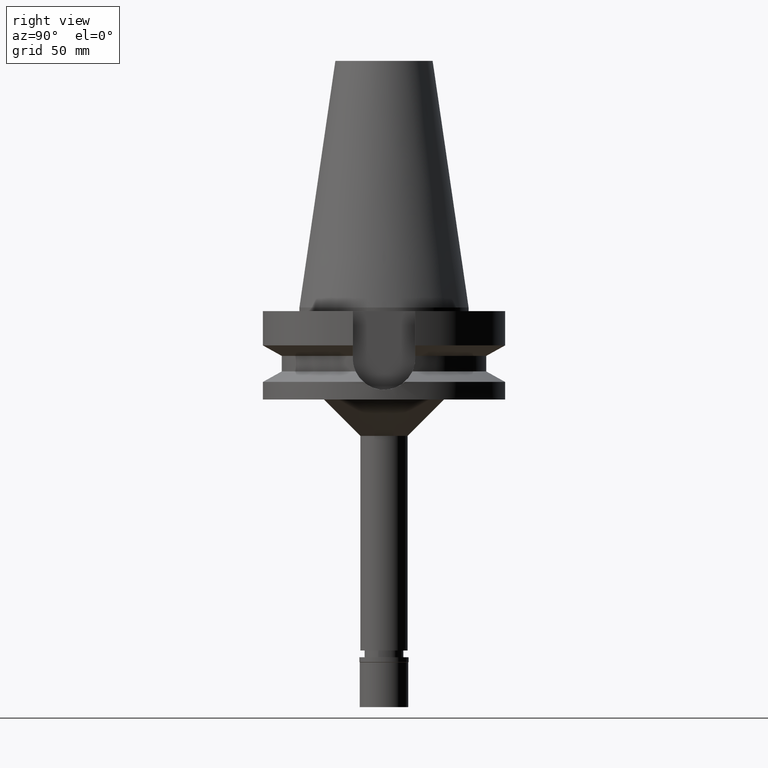
[diagram: clean part render]
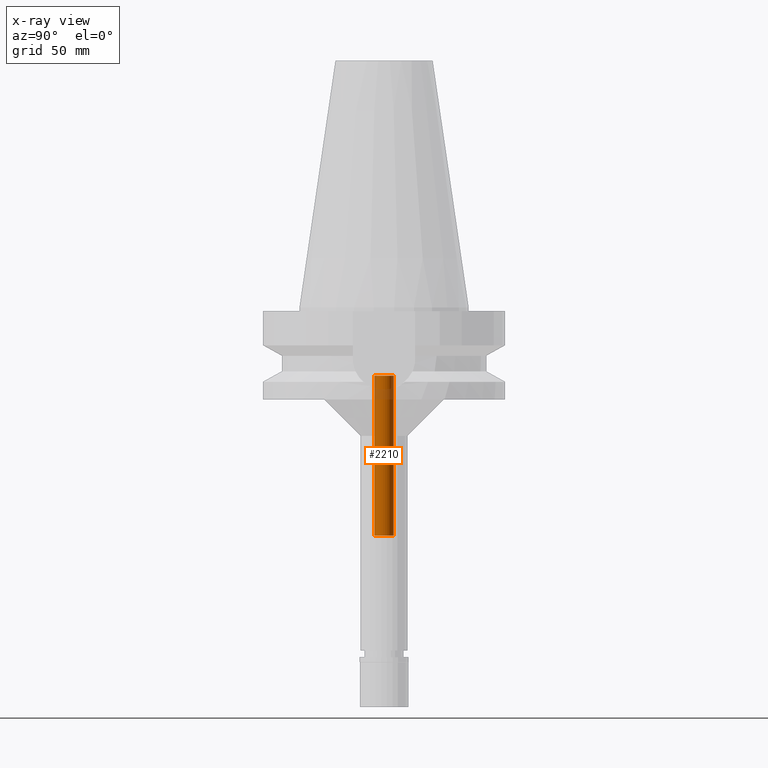
[diagram: x-ray — body ghosted, one internal face saturated and labeled with its STEP entity id]
A machine part, right view, then the same camera in x-ray: the body is ghosted and one INTERNAL B-rep face — a face not visible from any outside direction — is saturated and labeled: STEP entity #2210.
In plain terms, the highlighted cylindrical surface (edge-blend (fillet) strip) has radius 4 mm, axis along (0, 0, -1).
Its self-contained STEP definition (entity closure, byte-faithful):
#221 = CARTESIAN_POINT ( 'NONE',  ( 0.0000000000000000000, 2.629806536488999751E-14, -94.20000000000000284 ) ) ;
#249 = DIRECTION ( 'NONE',  ( 0.0000000000000000000, 0.0000000000000000000, -1.000000000000000000 ) ) ;
#299 = EDGE_CURVE ( 'NONE', #1984, #1639, #2725, .T. ) ;
#336 = EDGE_LOOP ( 'NONE', ( #1725, #1003, #2235, #1232 ) ) ;
#481 = DIRECTION ( 'NONE',  ( 0.0000000000000000000, 0.0000000000000000000, -1.000000000000000000 ) ) ;
#513 = CARTESIAN_POINT ( 'NONE',  ( 0.0000000000000000000, 4.000000000000000000, -94.20000000000000284 ) ) ;
#590 = DIRECTION ( 'NONE',  ( 0.0000000000000000000, -1.000000000000000000, 0.0000000000000000000 ) ) ;
#765 = DIRECTION ( 'NONE',  ( 0.0000000000000000000, 0.0000000000000000000, 1.000000000000000000 ) ) ;
#886 = EDGE_CURVE ( 'NONE', #1475, #1639, #1501, .T. ) ;
#994 = AXIS2_PLACEMENT_3D ( 'NONE', #1391, #2285, #590 ) ;
#1001 = VECTOR ( 'NONE', #765, 1000.000000000000000 ) ;
#1003 = ORIENTED_EDGE ( 'NONE', *, *, #1314, .T. ) ;
#1232 = ORIENTED_EDGE ( 'NONE', *, *, #299, .F. ) ;
#1314 = EDGE_CURVE ( 'NONE', #2048, #1475, #2083, .T. ) ;
#1391 = CARTESIAN_POINT ( 'NONE',  ( 0.0000000000000000000, 2.629806536488999751E-14, -28.19999999999999929 ) ) ;
#1475 = VERTEX_POINT ( 'NONE', #2270 ) ;
#1501 = CIRCLE ( 'NONE', #994, 4.000000000000000000 ) ;
#1586 = CARTESIAN_POINT ( 'NONE',  ( 0.0000000000000000000, -4.000000000000000000, -94.20000000000000284 ) ) ;
#1639 = VERTEX_POINT ( 'NONE', #2119 ) ;
#1725 = ORIENTED_EDGE ( 'NONE', *, *, #3056, .T. ) ;
#1824 = DIRECTION ( 'NONE',  ( 0.0000000000000000000, 0.0000000000000000000, 1.000000000000000000 ) ) ;
#1954 = CIRCLE ( 'NONE', #2675, 4.000000000000000000 ) ;
#1984 = VERTEX_POINT ( 'NONE', #2071 ) ;
#2048 = VERTEX_POINT ( 'NONE', #1586 ) ;
#2071 = CARTESIAN_POINT ( 'NONE',  ( 0.0000000000000000000, 4.000000000000000000, -94.20000000000000284 ) ) ;
#2083 = LINE ( 'NONE', #2561, #3087 ) ;
#2119 = CARTESIAN_POINT ( 'NONE',  ( 0.0000000000000000000, 4.000000000000000000, -28.19999999999999929 ) ) ;
#2210 = ADVANCED_FACE ( 'NONE', ( #2916 ), #2682, .F. ) ;
#2235 = ORIENTED_EDGE ( 'NONE', *, *, #886, .T. ) ;
#2270 = CARTESIAN_POINT ( 'NONE',  ( 0.0000000000000000000, -4.000000000000000000, -28.19999999999999929 ) ) ;
#2285 = DIRECTION ( 'NONE',  ( 0.0000000000000000000, 0.0000000000000000000, 1.000000000000000000 ) ) ;
#2428 = DIRECTION ( 'NONE',  ( 0.0000000000000000000, 1.000000000000000000, 0.0000000000000000000 ) ) ;
#2561 = CARTESIAN_POINT ( 'NONE',  ( 0.0000000000000000000, -4.000000000000000000, -94.20000000000000284 ) ) ;
#2675 = AXIS2_PLACEMENT_3D ( 'NONE', #221, #481, #2428 ) ;
#2682 = CYLINDRICAL_SURFACE ( 'NONE', #2782, 4.000000000000000000 ) ;
#2725 = LINE ( 'NONE', #513, #1001 ) ;
#2782 = AXIS2_PLACEMENT_3D ( 'NONE', #2932, #249, #2862 ) ;
#2862 = DIRECTION ( 'NONE',  ( 0.0000000000000000000, -1.000000000000000000, 0.0000000000000000000 ) ) ;
#2916 = FACE_OUTER_BOUND ( 'NONE', #336, .T. ) ;
#2932 = CARTESIAN_POINT ( 'NONE',  ( 0.0000000000000000000, 2.629806536488999751E-14, 114.7399999999999949 ) ) ;
#3056 = EDGE_CURVE ( 'NONE', #1984, #2048, #1954, .T. ) ;
#3087 = VECTOR ( 'NONE', #1824, 1000.000000000000000 ) ;